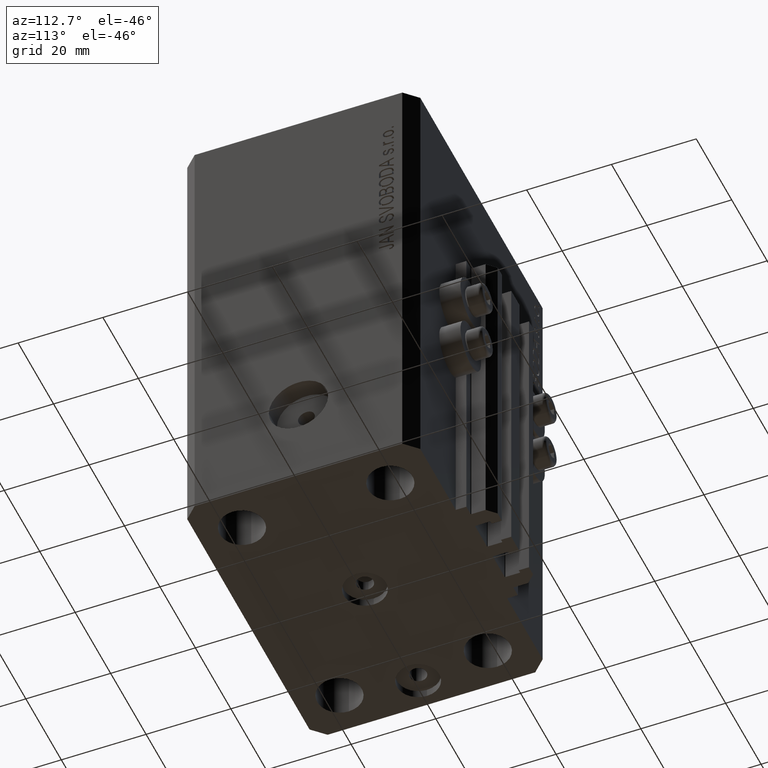
[diagram: clean part render]
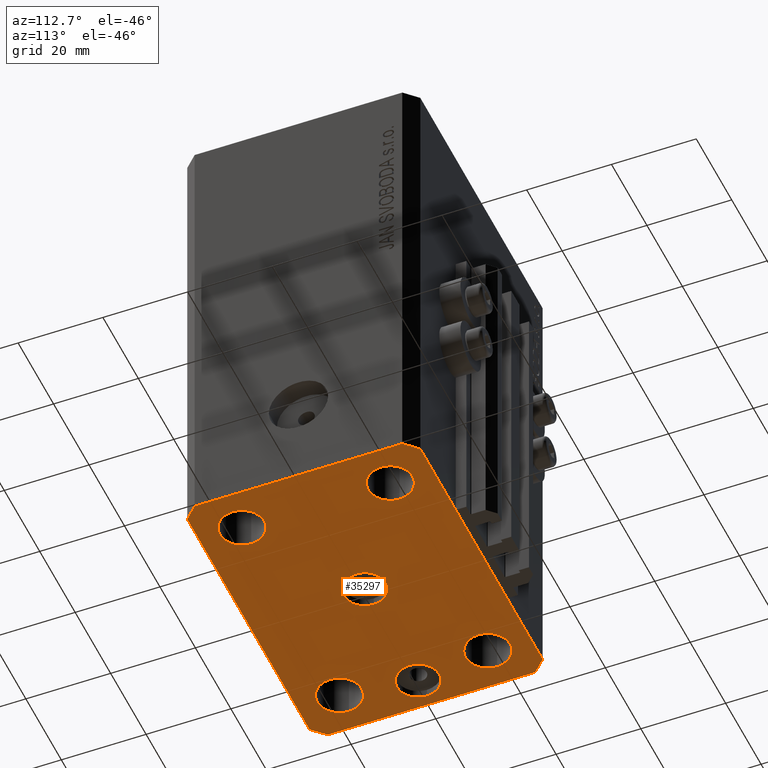
[diagram: same view with one face highlighted and labeled with its STEP entity id]
A machine part, auxiliary view. The second image highlights one B-rep face of the part: STEP entity #35297.
In plain terms, the highlighted planar face has unit normal (0, 0, 1).
Its self-contained STEP definition (entity closure, byte-faithful):
#80 = ORIENTED_EDGE ( 'NONE', *, *, #4554, .F. ) ;
#143 = AXIS2_PLACEMENT_3D ( 'NONE', #23624, #8538, #12127 ) ;
#177 = VERTEX_POINT ( 'NONE', #16445 ) ;
#565 = LINE ( 'NONE', #44152, #21601 ) ;
#667 = EDGE_CURVE ( 'NONE', #16557, #44117, #10506, .T. ) ;
#671 = VECTOR ( 'NONE', #6114, 1000.000000000000000 ) ;
#714 = CARTESIAN_POINT ( 'NONE',  ( -27.49999999999999289, -17.50000000000000000, -110.0000000000000000 ) ) ;
#948 = EDGE_CURVE ( 'NONE', #25171, #44916, #32700, .T. ) ;
#1953 = EDGE_LOOP ( 'NONE', ( #29776, #80 ) ) ;
#2004 = AXIS2_PLACEMENT_3D ( 'NONE', #46105, #32224, #21468 ) ;
#2096 = CARTESIAN_POINT ( 'NONE',  ( 0.000000000000000000, 0.000000000000000000, -110.0000000000000000 ) ) ;
#2285 = CARTESIAN_POINT ( 'NONE',  ( -25.00000000000000000, 6.123233995736762338E-16, -110.0000000000000000 ) ) ;
#3099 = DIRECTION ( 'NONE',  ( 1.000000000000000000, 0.000000000000000000, 0.000000000000000000 ) ) ;
#3196 = DIRECTION ( 'NONE',  ( 0.7071067811865483499, -0.7071067811865466846, 0.000000000000000000 ) ) ;
#3435 = ORIENTED_EDGE ( 'NONE', *, *, #15849, .F. ) ;
#4239 = VERTEX_POINT ( 'NONE', #7360 ) ;
#4313 = EDGE_CURVE ( 'NONE', #39388, #16702, #14696, .T. ) ;
#4318 = CIRCLE ( 'NONE', #42510, 5.000000000000000000 ) ;
#4322 = DIRECTION ( 'NONE',  ( -0.000000000000000000, -0.000000000000000000, -1.000000000000000000 ) ) ;
#4486 = EDGE_CURVE ( 'NONE', #31754, #17086, #565, .T. ) ;
#4554 = EDGE_CURVE ( 'NONE', #42608, #177, #11655, .T. ) ;
#4818 = FACE_BOUND ( 'NONE', #6966, .T. ) ;
#5041 = DIRECTION ( 'NONE',  ( -1.000000000000000000, 0.000000000000000000, 0.000000000000000000 ) ) ;
#5057 = DIRECTION ( 'NONE',  ( 0.000000000000000000, 0.000000000000000000, -1.000000000000000000 ) ) ;
#5430 = ORIENTED_EDGE ( 'NONE', *, *, #7567, .F. ) ;
#5798 = ORIENTED_EDGE ( 'NONE', *, *, #34683, .F. ) ;
#6034 = CARTESIAN_POINT ( 'NONE',  ( 34.50000000000056843, 27.50000000000000000, -110.0000000000000000 ) ) ;
#6110 = CARTESIAN_POINT ( 'NONE',  ( 37.50000000000051870, 24.49999999999995381, -110.0000000000000000 ) ) ;
#6114 = DIRECTION ( 'NONE',  ( -0.7071067811865471286, -0.7071067811865479058, 0.000000000000000000 ) ) ;
#6511 = CARTESIAN_POINT ( 'NONE',  ( -34.49999999999999289, 27.50000000000000000, -110.0000000000000000 ) ) ;
#6594 = LINE ( 'NONE', #42962, #33563 ) ;
#6832 = ORIENTED_EDGE ( 'NONE', *, *, #24877, .F. ) ;
#6966 = EDGE_LOOP ( 'NONE', ( #11966, #19841 ) ) ;
#7060 = VERTEX_POINT ( 'NONE', #7174 ) ;
#7174 = CARTESIAN_POINT ( 'NONE',  ( -34.49999999999998579, -27.49999999999999645, -110.0000000000000000 ) ) ;
#7360 = CARTESIAN_POINT ( 'NONE',  ( -22.24999999999999289, -17.50000000000000000, -110.0000000000000000 ) ) ;
#7533 = CARTESIAN_POINT ( 'NONE',  ( 37.49999999999999289, -24.50000000000000000, -110.0000000000000000 ) ) ;
#7567 = EDGE_CURVE ( 'NONE', #16702, #39388, #28550, .T. ) ;
#7617 = EDGE_CURVE ( 'NONE', #44916, #25171, #11751, .T. ) ;
#8189 = VERTEX_POINT ( 'NONE', #6110 ) ;
#8413 = FACE_BOUND ( 'NONE', #38169, .T. ) ;
#8538 = DIRECTION ( 'NONE',  ( 0.000000000000000000, 0.000000000000000000, -1.000000000000000000 ) ) ;
#8853 = DIRECTION ( 'NONE',  ( -0.000000000000000000, -0.000000000000000000, -1.000000000000000000 ) ) ;
#9511 = VERTEX_POINT ( 'NONE', #37846 ) ;
#9512 = EDGE_CURVE ( 'NONE', #43079, #9511, #16400, .T. ) ;
#9566 = ORIENTED_EDGE ( 'NONE', *, *, #20524, .F. ) ;
#9774 = DIRECTION ( 'NONE',  ( -1.000000000000000000, 0.000000000000000000, 0.000000000000000000 ) ) ;
#10118 = EDGE_CURVE ( 'NONE', #20379, #4239, #29377, .T. ) ;
#10435 = CARTESIAN_POINT ( 'NONE',  ( -37.49999999999999289, 24.50000000000000000, -110.0000000000000000 ) ) ;
#10467 = LINE ( 'NONE', #43237, #25997 ) ;
#10506 = CIRCLE ( 'NONE', #28850, 5.250000000000000888 ) ;
#11032 = AXIS2_PLACEMENT_3D ( 'NONE', #46147, #5057, #9774 ) ;
#11538 = DIRECTION ( 'NONE',  ( 1.000000000000000000, 0.000000000000000000, -0.000000000000000000 ) ) ;
#11655 = CIRCLE ( 'NONE', #46783, 5.250000000000000888 ) ;
#11684 = DIRECTION ( 'NONE',  ( 1.000000000000000000, 0.000000000000000000, 0.000000000000000000 ) ) ;
#11751 = CIRCLE ( 'NONE', #35417, 5.250000000000000888 ) ;
#11919 = EDGE_CURVE ( 'NONE', #177, #42608, #31053, .T. ) ;
#11966 = ORIENTED_EDGE ( 'NONE', *, *, #7617, .F. ) ;
#12077 = AXIS2_PLACEMENT_3D ( 'NONE', #22706, #44698, #15981 ) ;
#12127 = DIRECTION ( 'NONE',  ( -1.000000000000000000, 0.000000000000000000, 0.000000000000000000 ) ) ;
#12316 = EDGE_CURVE ( 'NONE', #17086, #7060, #14451, .T. ) ;
#12470 = DIRECTION ( 'NONE',  ( 0.000000000000000000, 0.000000000000000000, -1.000000000000000000 ) ) ;
#12662 = CARTESIAN_POINT ( 'NONE',  ( 22.24999999999999289, -17.50000000000000000, -110.0000000000000000 ) ) ;
#13127 = FACE_BOUND ( 'NONE', #36325, .T. ) ;
#13158 = ORIENTED_EDGE ( 'NONE', *, *, #35601, .F. ) ;
#13413 = CARTESIAN_POINT ( 'NONE',  ( -27.50000000000000000, 17.49999999999999645, -110.0000000000000000 ) ) ;
#13693 = DIRECTION ( 'NONE',  ( 1.000000000000000000, 0.000000000000000000, 0.000000000000000000 ) ) ;
#13935 = DIRECTION ( 'NONE',  ( -1.000000000000000000, 0.000000000000000000, 0.000000000000000000 ) ) ;
#14451 = LINE ( 'NONE', #26173, #46359 ) ;
#14696 = CIRCLE ( 'NONE', #143, 4.999999999999997335 ) ;
#14792 = ORIENTED_EDGE ( 'NONE', *, *, #12316, .F. ) ;
#15099 = VERTEX_POINT ( 'NONE', #7533 ) ;
#15849 = EDGE_CURVE ( 'NONE', #4239, #20379, #45153, .T. ) ;
#15981 = DIRECTION ( 'NONE',  ( 1.000000000000000000, 0.000000000000000000, 0.000000000000000000 ) ) ;
#16156 = AXIS2_PLACEMENT_3D ( 'NONE', #44463, #43748, #11684 ) ;
#16400 = CIRCLE ( 'NONE', #11032, 5.000000000000000000 ) ;
#16445 = CARTESIAN_POINT ( 'NONE',  ( 32.74999999999999289, -17.50000000000000000, -110.0000000000000000 ) ) ;
#16557 = VERTEX_POINT ( 'NONE', #26478 ) ;
#16702 = VERTEX_POINT ( 'NONE', #47237 ) ;
#16722 = DIRECTION ( 'NONE',  ( 0.000000000000000000, 0.000000000000000000, 1.000000000000000000 ) ) ;
#17086 = VERTEX_POINT ( 'NONE', #36847 ) ;
#17274 = CARTESIAN_POINT ( 'NONE',  ( 0.000000000000000000, 0.000000000000000000, -110.0000000000000000 ) ) ;
#17373 = LINE ( 'NONE', #39133, #671 ) ;
#17529 = CARTESIAN_POINT ( 'NONE',  ( -34.49999999999998579, -27.49999999999999645, -110.0000000000000000 ) ) ;
#18642 = ORIENTED_EDGE ( 'NONE', *, *, #37425, .F. ) ;
#19223 = VERTEX_POINT ( 'NONE', #32626 ) ;
#19841 = ORIENTED_EDGE ( 'NONE', *, *, #948, .F. ) ;
#20127 = CARTESIAN_POINT ( 'NONE',  ( -30.00000000000000000, 0.000000000000000000, -110.0000000000000000 ) ) ;
#20308 = FACE_BOUND ( 'NONE', #34264, .T. ) ;
#20379 = VERTEX_POINT ( 'NONE', #27337 ) ;
#20524 = EDGE_CURVE ( 'NONE', #19223, #20530, #46232, .T. ) ;
#20530 = VERTEX_POINT ( 'NONE', #6511 ) ;
#21468 = DIRECTION ( 'NONE',  ( 1.000000000000000000, 0.000000000000000000, 0.000000000000000000 ) ) ;
#21601 = VECTOR ( 'NONE', #39597, 1000.000000000000000 ) ;
#22015 = EDGE_CURVE ( 'NONE', #8189, #19223, #31943, .T. ) ;
#22203 = VECTOR ( 'NONE', #13693, 1000.000000000000000 ) ;
#22235 = ORIENTED_EDGE ( 'NONE', *, *, #41041, .F. ) ;
#22456 = CARTESIAN_POINT ( 'NONE',  ( 34.49999999999999289, -27.49999999999999645, -110.0000000000000000 ) ) ;
#22706 = CARTESIAN_POINT ( 'NONE',  ( -27.50000000000000000, 17.49999999999999645, -110.0000000000000000 ) ) ;
#23624 = CARTESIAN_POINT ( 'NONE',  ( -30.00000000000000000, 0.000000000000000000, -110.0000000000000000 ) ) ;
#24083 = DIRECTION ( 'NONE',  ( -0.7071067811865364705, 0.7071067811865584529, 0.000000000000000000 ) ) ;
#24465 = DIRECTION ( 'NONE',  ( 0.000000000000000000, 0.000000000000000000, -1.000000000000000000 ) ) ;
#24747 = DIRECTION ( 'NONE',  ( -0.000000000000000000, -0.000000000000000000, -1.000000000000000000 ) ) ;
#24877 = EDGE_CURVE ( 'NONE', #9511, #43079, #4318, .T. ) ;
#25171 = VERTEX_POINT ( 'NONE', #28685 ) ;
#25997 = VECTOR ( 'NONE', #39186, 1000.000000000000000 ) ;
#26094 = CIRCLE ( 'NONE', #16156, 5.250000000000000888 ) ;
#26109 = EDGE_LOOP ( 'NONE', ( #9566, #34164, #18642, #13158, #46619, #14792, #31171, #5798 ) ) ;
#26173 = CARTESIAN_POINT ( 'NONE',  ( -37.49999999999999289, -24.50000000000000000, -110.0000000000000000 ) ) ;
#26403 = VECTOR ( 'NONE', #24083, 1000.000000000000114 ) ;
#26478 = CARTESIAN_POINT ( 'NONE',  ( 32.75000000000000000, 17.49999999999999289, -110.0000000000000000 ) ) ;
#27337 = CARTESIAN_POINT ( 'NONE',  ( -32.74999999999999289, -17.50000000000000000, -110.0000000000000000 ) ) ;
#28550 = CIRCLE ( 'NONE', #33877, 4.999999999999997335 ) ;
#28685 = CARTESIAN_POINT ( 'NONE',  ( -32.75000000000000000, 17.49999999999999645, -110.0000000000000000 ) ) ;
#28850 = AXIS2_PLACEMENT_3D ( 'NONE', #37806, #8853, #45226 ) ;
#29377 = CIRCLE ( 'NONE', #43118, 5.250000000000000888 ) ;
#29776 = ORIENTED_EDGE ( 'NONE', *, *, #11919, .F. ) ;
#29846 = CARTESIAN_POINT ( 'NONE',  ( 5.000000000000000000, 6.123233995736765296E-16, -110.0000000000000000 ) ) ;
#30218 = CARTESIAN_POINT ( 'NONE',  ( -22.25000000000000000, 17.49999999999999645, -110.0000000000000000 ) ) ;
#30431 = FACE_BOUND ( 'NONE', #1953, .T. ) ;
#30653 = DIRECTION ( 'NONE',  ( 1.000000000000000000, 0.000000000000000000, 0.000000000000000000 ) ) ;
#31053 = CIRCLE ( 'NONE', #2004, 5.250000000000000888 ) ;
#31171 = ORIENTED_EDGE ( 'NONE', *, *, #4486, .F. ) ;
#31754 = VERTEX_POINT ( 'NONE', #10435 ) ;
#31802 = EDGE_LOOP ( 'NONE', ( #3435, #45224 ) ) ;
#31943 = LINE ( 'NONE', #43173, #26403 ) ;
#32023 = AXIS2_PLACEMENT_3D ( 'NONE', #2096, #16722, #11538 ) ;
#32224 = DIRECTION ( 'NONE',  ( -0.000000000000000000, -0.000000000000000000, -1.000000000000000000 ) ) ;
#32298 = DIRECTION ( 'NONE',  ( -0.000000000000000000, -0.000000000000000000, -1.000000000000000000 ) ) ;
#32626 = CARTESIAN_POINT ( 'NONE',  ( 34.50000000000056843, 27.50000000000000000, -110.0000000000000000 ) ) ;
#32700 = CIRCLE ( 'NONE', #12077, 5.250000000000000888 ) ;
#33563 = VECTOR ( 'NONE', #35550, 1000.000000000000114 ) ;
#33877 = AXIS2_PLACEMENT_3D ( 'NONE', #20127, #12470, #5041 ) ;
#34015 = FACE_OUTER_BOUND ( 'NONE', #26109, .T. ) ;
#34164 = ORIENTED_EDGE ( 'NONE', *, *, #22015, .F. ) ;
#34264 = EDGE_LOOP ( 'NONE', ( #6832, #38639 ) ) ;
#34683 = EDGE_CURVE ( 'NONE', #20530, #31754, #17373, .T. ) ;
#34892 = PLANE ( 'NONE',  #32023 ) ;
#34957 = CARTESIAN_POINT ( 'NONE',  ( 27.49999999999999289, -17.50000000000000000, -110.0000000000000000 ) ) ;
#35297 = ADVANCED_FACE ( 'NONE', ( #20308, #8413, #44315, #30431, #13127, #4818, #34015 ), #34892, .F. ) ;
#35417 = AXIS2_PLACEMENT_3D ( 'NONE', #13413, #32298, #3099 ) ;
#35500 = DIRECTION ( 'NONE',  ( 1.000000000000000000, 0.000000000000000000, 0.000000000000000000 ) ) ;
#35550 = DIRECTION ( 'NONE',  ( 0.7071067811865474617, 0.7071067811865474617, 0.000000000000000000 ) ) ;
#35601 = EDGE_CURVE ( 'NONE', #39276, #15099, #6594, .T. ) ;
#35697 = LINE ( 'NONE', #17529, #22203 ) ;
#36325 = EDGE_LOOP ( 'NONE', ( #37328, #22235 ) ) ;
#36379 = CARTESIAN_POINT ( 'NONE',  ( 22.25000000000000000, 17.49999999999999289, -110.0000000000000000 ) ) ;
#36847 = CARTESIAN_POINT ( 'NONE',  ( -37.49999999999999289, -24.50000000000000000, -110.0000000000000000 ) ) ;
#37328 = ORIENTED_EDGE ( 'NONE', *, *, #667, .F. ) ;
#37425 = EDGE_CURVE ( 'NONE', #15099, #8189, #10467, .T. ) ;
#37806 = CARTESIAN_POINT ( 'NONE',  ( 27.50000000000000000, 17.49999999999999289, -110.0000000000000000 ) ) ;
#37846 = CARTESIAN_POINT ( 'NONE',  ( -5.000000000000000000, 0.000000000000000000, -110.0000000000000000 ) ) ;
#38169 = EDGE_LOOP ( 'NONE', ( #5430, #39619 ) ) ;
#38557 = VECTOR ( 'NONE', #13935, 1000.000000000000000 ) ;
#38639 = ORIENTED_EDGE ( 'NONE', *, *, #9512, .F. ) ;
#39133 = CARTESIAN_POINT ( 'NONE',  ( -34.49999999999999289, 27.50000000000000000, -110.0000000000000000 ) ) ;
#39186 = DIRECTION ( 'NONE',  ( 1.076236605503979380E-14, 1.000000000000000000, 0.000000000000000000 ) ) ;
#39276 = VERTEX_POINT ( 'NONE', #22456 ) ;
#39388 = VERTEX_POINT ( 'NONE', #2285 ) ;
#39597 = DIRECTION ( 'NONE',  ( 0.000000000000000000, -1.000000000000000000, 0.000000000000000000 ) ) ;
#39619 = ORIENTED_EDGE ( 'NONE', *, *, #4313, .F. ) ;
#39771 = AXIS2_PLACEMENT_3D ( 'NONE', #714, #4322, #30653 ) ;
#41041 = EDGE_CURVE ( 'NONE', #44117, #16557, #26094, .T. ) ;
#41888 = DIRECTION ( 'NONE',  ( 1.000000000000000000, 0.000000000000000000, 0.000000000000000000 ) ) ;
#42510 = AXIS2_PLACEMENT_3D ( 'NONE', #17274, #24465, #46450 ) ;
#42514 = EDGE_CURVE ( 'NONE', #7060, #39276, #35697, .T. ) ;
#42608 = VERTEX_POINT ( 'NONE', #12662 ) ;
#42962 = CARTESIAN_POINT ( 'NONE',  ( 34.49999999999999289, -27.49999999999999645, -110.0000000000000000 ) ) ;
#43079 = VERTEX_POINT ( 'NONE', #29846 ) ;
#43118 = AXIS2_PLACEMENT_3D ( 'NONE', #46736, #24747, #35500 ) ;
#43173 = CARTESIAN_POINT ( 'NONE',  ( 37.50000000000051870, 24.49999999999995381, -110.0000000000000000 ) ) ;
#43237 = CARTESIAN_POINT ( 'NONE',  ( 37.49999999999999289, -24.50000000000000000, -110.0000000000000000 ) ) ;
#43748 = DIRECTION ( 'NONE',  ( -0.000000000000000000, -0.000000000000000000, -1.000000000000000000 ) ) ;
#44117 = VERTEX_POINT ( 'NONE', #36379 ) ;
#44152 = CARTESIAN_POINT ( 'NONE',  ( -37.49999999999999289, 24.50000000000000000, -110.0000000000000000 ) ) ;
#44315 = FACE_BOUND ( 'NONE', #31802, .T. ) ;
#44463 = CARTESIAN_POINT ( 'NONE',  ( 27.50000000000000000, 17.49999999999999289, -110.0000000000000000 ) ) ;
#44698 = DIRECTION ( 'NONE',  ( -0.000000000000000000, -0.000000000000000000, -1.000000000000000000 ) ) ;
#44916 = VERTEX_POINT ( 'NONE', #30218 ) ;
#45153 = CIRCLE ( 'NONE', #39771, 5.250000000000000888 ) ;
#45224 = ORIENTED_EDGE ( 'NONE', *, *, #10118, .F. ) ;
#45226 = DIRECTION ( 'NONE',  ( 1.000000000000000000, 0.000000000000000000, 0.000000000000000000 ) ) ;
#45497 = DIRECTION ( 'NONE',  ( -0.000000000000000000, -0.000000000000000000, -1.000000000000000000 ) ) ;
#46105 = CARTESIAN_POINT ( 'NONE',  ( 27.49999999999999289, -17.50000000000000000, -110.0000000000000000 ) ) ;
#46147 = CARTESIAN_POINT ( 'NONE',  ( 0.000000000000000000, 0.000000000000000000, -110.0000000000000000 ) ) ;
#46232 = LINE ( 'NONE', #6034, #38557 ) ;
#46359 = VECTOR ( 'NONE', #3196, 1000.000000000000000 ) ;
#46450 = DIRECTION ( 'NONE',  ( -1.000000000000000000, 0.000000000000000000, 0.000000000000000000 ) ) ;
#46619 = ORIENTED_EDGE ( 'NONE', *, *, #42514, .F. ) ;
#46736 = CARTESIAN_POINT ( 'NONE',  ( -27.49999999999999289, -17.50000000000000000, -110.0000000000000000 ) ) ;
#46783 = AXIS2_PLACEMENT_3D ( 'NONE', #34957, #45497, #41888 ) ;
#47237 = CARTESIAN_POINT ( 'NONE',  ( -34.99999999999999289, 0.000000000000000000, -110.0000000000000000 ) ) ;